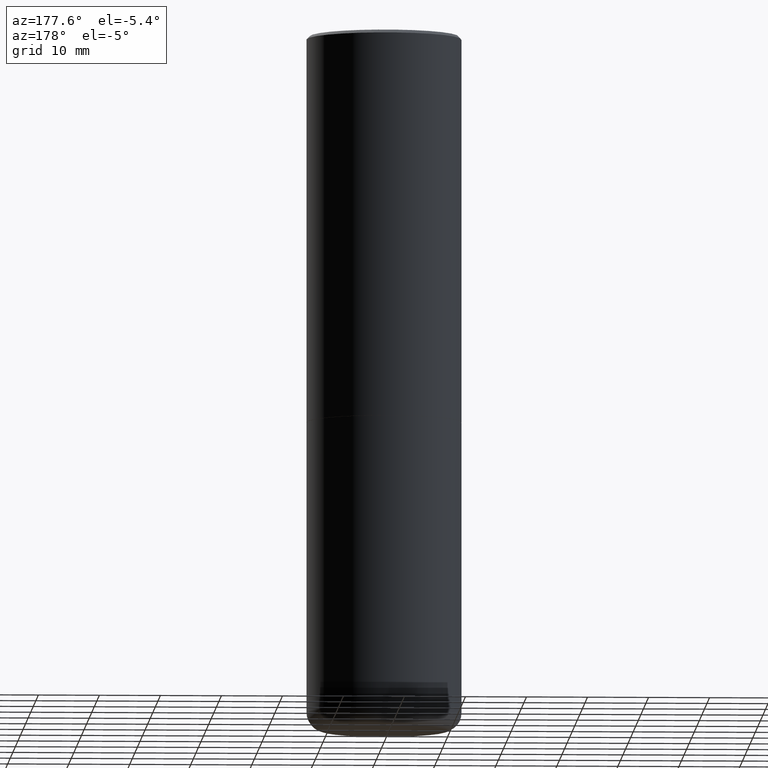
[diagram: clean part render]
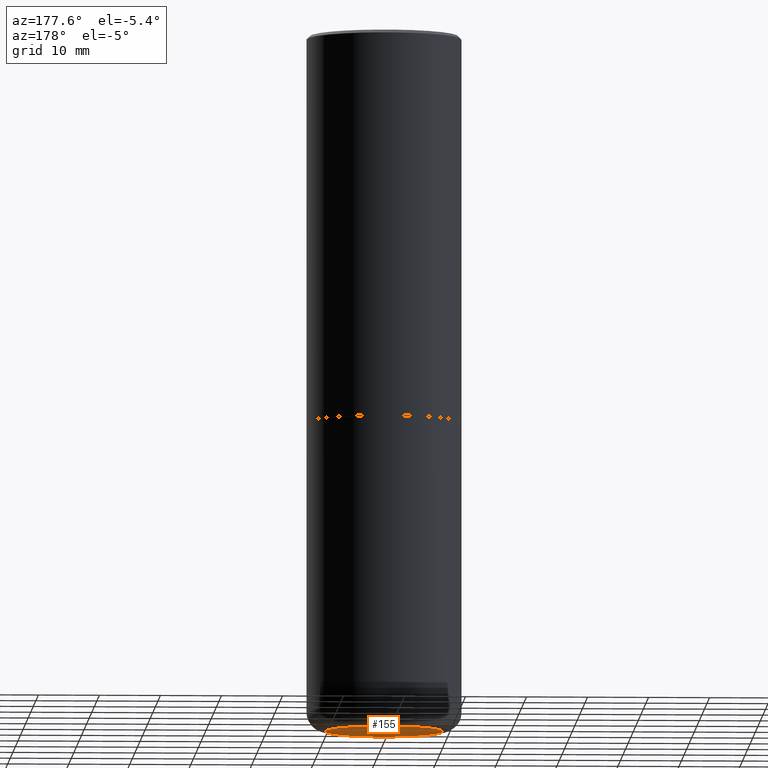
[diagram: same view with one face highlighted and labeled with its STEP entity id]
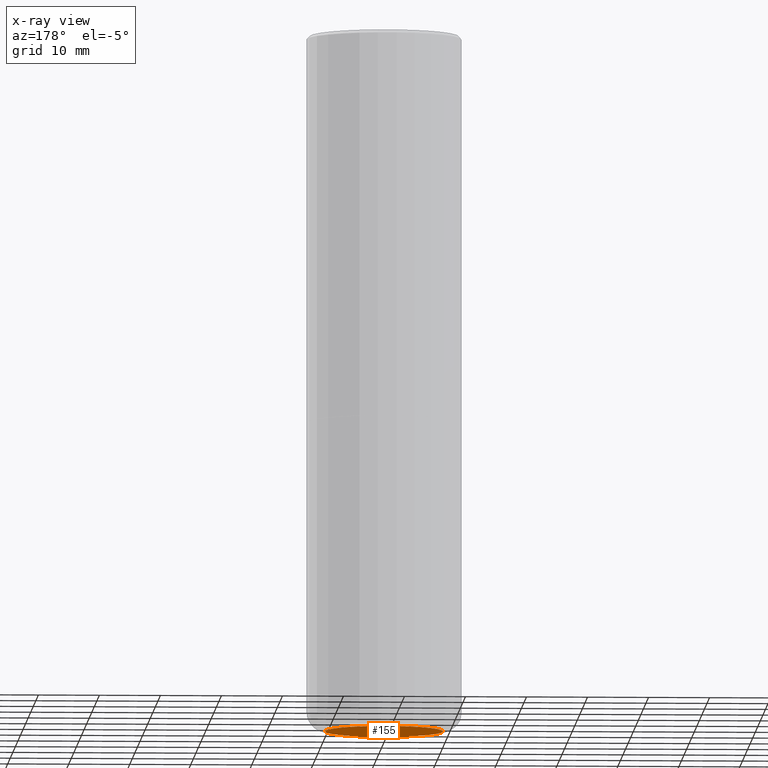
[diagram: x-ray of the same camera — body ghosted, the highlighted face saturated]
A machine part, auxiliary view. The second image highlights one B-rep face of the part: STEP entity #155.
The next image is the same camera in x-ray: the body ghosted, the highlighted face saturated — about 0% of this face is hidden behind the body in this view.
In plain terms, the highlighted planar face has unit normal (0, -0, -1).
Its self-contained STEP definition (entity closure, byte-faithful):
#3 = CARTESIAN_POINT ( 'NONE',  ( 0.3799999999999999489, -1.836519184231493383E-14, -4.499999999999999112 ) ) ;
#6 = DIRECTION ( 'NONE',  ( -2.445468806185136597E-29, 3.491481338843145583E-15, 1.000000000000000000 ) ) ;
#34 = FACE_OUTER_BOUND ( 'NONE', #402, .T. ) ;
#93 = EDGE_CURVE ( 'NONE', #251, #314, #221, .T. ) ;
#101 = ORIENTED_EDGE ( 'NONE', *, *, #152, .F. ) ;
#133 = DIRECTION ( 'NONE',  ( 1.000000000000000000, -6.982962677686261977E-15, 0.000000000000000000 ) ) ;
#152 = EDGE_CURVE ( 'NONE', #314, #251, #287, .T. ) ;
#155 = ADVANCED_FACE ( 'NONE', ( #34 ), #159, .T. ) ;
#157 = CARTESIAN_POINT ( 'NONE',  ( 1.100460962783311244E-28, -1.571166602479415374E-14, -4.499999999999999112 ) ) ;
#159 = PLANE ( 'NONE',  #388 ) ;
#187 = DIRECTION ( 'NONE',  ( -2.445468806185136597E-29, 3.491481338843145583E-15, 1.000000000000000000 ) ) ;
#193 = DIRECTION ( 'NONE',  ( -1.000000000000000000, 6.982962677686265922E-15, -4.876176775795935793E-29 ) ) ;
#206 = CARTESIAN_POINT ( 'NONE',  ( -0.3799999999999999489, -1.237578910711912656E-14, -4.499999999999999112 ) ) ;
#221 = CIRCLE ( 'NONE', #337, 0.3799999999999999489 ) ;
#251 = VERTEX_POINT ( 'NONE', #206 ) ;
#256 = CARTESIAN_POINT ( 'NONE',  ( 1.552270260751276823E-28, -9.241499724010371666E-15, -4.499999999999999112 ) ) ;
#260 = DIRECTION ( 'NONE',  ( 1.000000000000000000, -6.982962677686261977E-15, 0.000000000000000000 ) ) ;
#287 = CIRCLE ( 'NONE', #372, 0.3799999999999999489 ) ;
#300 = ORIENTED_EDGE ( 'NONE', *, *, #93, .F. ) ;
#314 = VERTEX_POINT ( 'NONE', #3 ) ;
#337 = AXIS2_PLACEMENT_3D ( 'NONE', #383, #187, #260 ) ;
#372 = AXIS2_PLACEMENT_3D ( 'NONE', #157, #6, #133 ) ;
#383 = CARTESIAN_POINT ( 'NONE',  ( 1.100460962783311244E-28, -1.571166602479415374E-14, -4.499999999999999112 ) ) ;
#384 = DIRECTION ( 'NONE',  ( 2.438088387897960049E-29, -3.491481338843145188E-15, -1.000000000000000000 ) ) ;
#388 = AXIS2_PLACEMENT_3D ( 'NONE', #256, #384, #193 ) ;
#402 = EDGE_LOOP ( 'NONE', ( #101, #300 ) ) ;